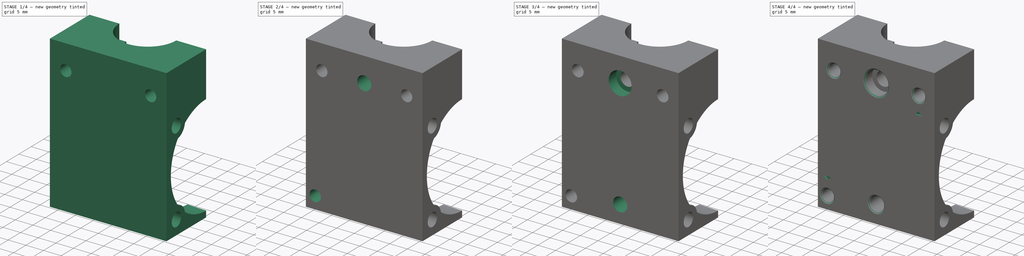
[diagram: build sequence overview — one tinted view per stage of 4, left to right]
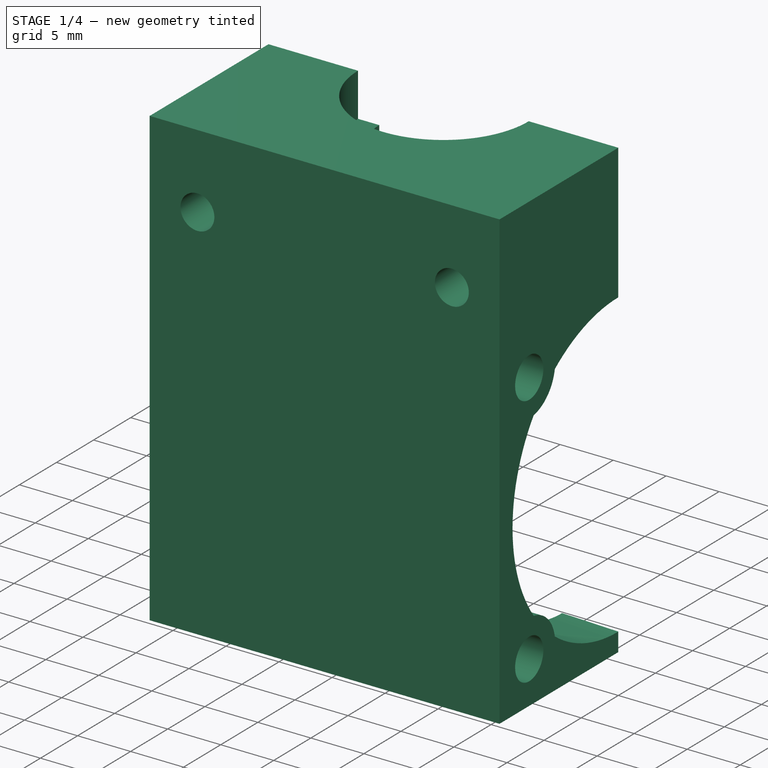
[diagram: stage 1 of 4 — iso view after this stage's code; geometry added in this stage tinted green]
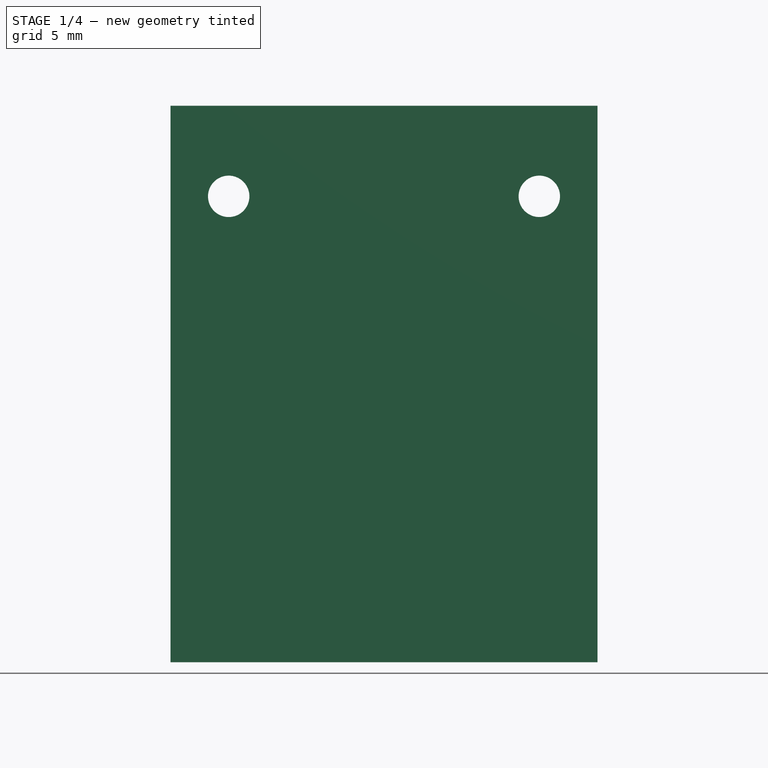
[diagram: stage 1 of 4 — front view after this stage's code; geometry added in this stage tinted green]
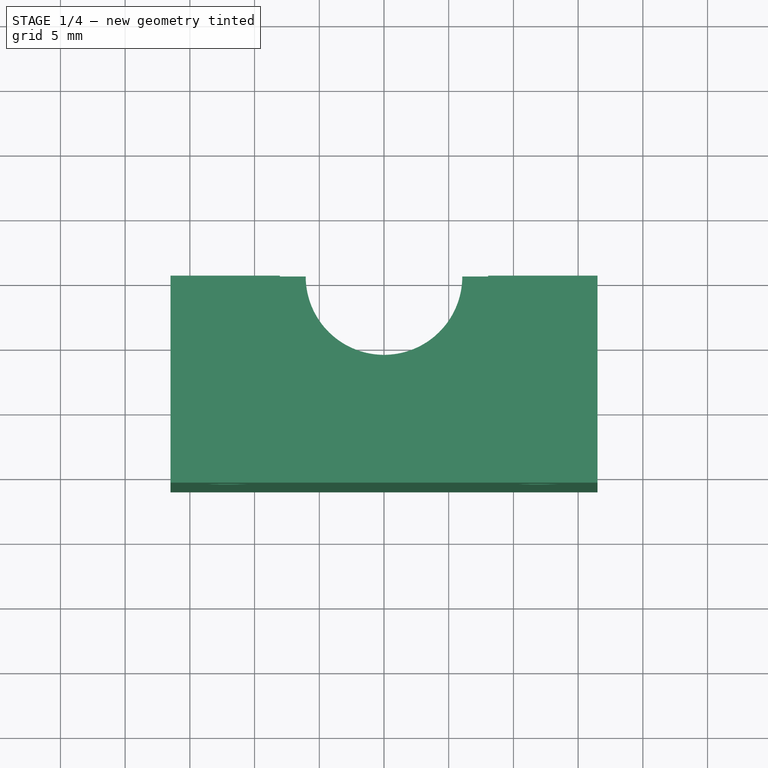
[diagram: stage 1 of 4 — top view after this stage's code; geometry added in this stage tinted green]
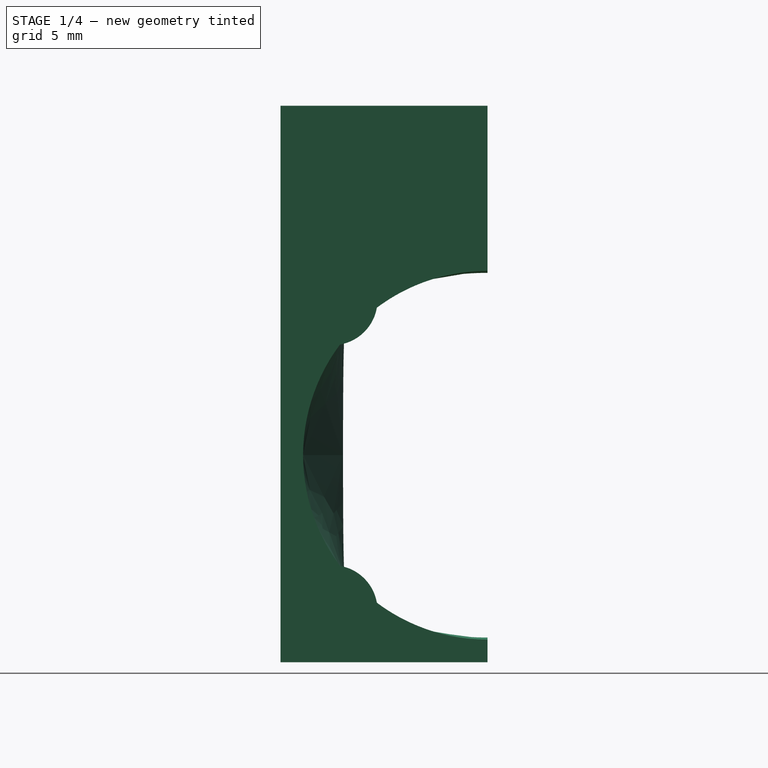
[diagram: stage 1 of 4 — right view after this stage's code; geometry added in this stage tinted green]
FCSTD DOCUMENT  (FreeCAD 0.19R24366 (Git))
Label: front-body-common
License: All rights reserved
LicenseURL: http://en.wikipedia.org/wiki/All_rights_reserved
objects: Sketcher::SketchObject×7, PartDesign::Pocket×6, Part::Feature×1, Part::Mirroring×1, PartDesign::FeatureBase×1, PartDesign::Pad×1, PartDesign::Chamfer×1, PartDesign::Body×1
note: 27 computed .brp shape members not serialized (recipe doc carries the construction recipe); baked Part::Feature solids carry a one-line shape summary decoded from their .brp

FEATURE [Part::Feature] Body002002001  label="body-base-second001"
  shape: bbox 33 x 27 x 43 mm, 35 faces (baked)
FEATURE [Part::Mirroring] Part__Mirroring  label="body-base-second001 (Mirror #1)"
  Base = (0,0,0)
  Normal = (0,1,0)
  Source = -> Body002002001
FEATURE [PartDesign::FeatureBase] BaseFeature004
  BaseFeature = -> Part__Mirroring
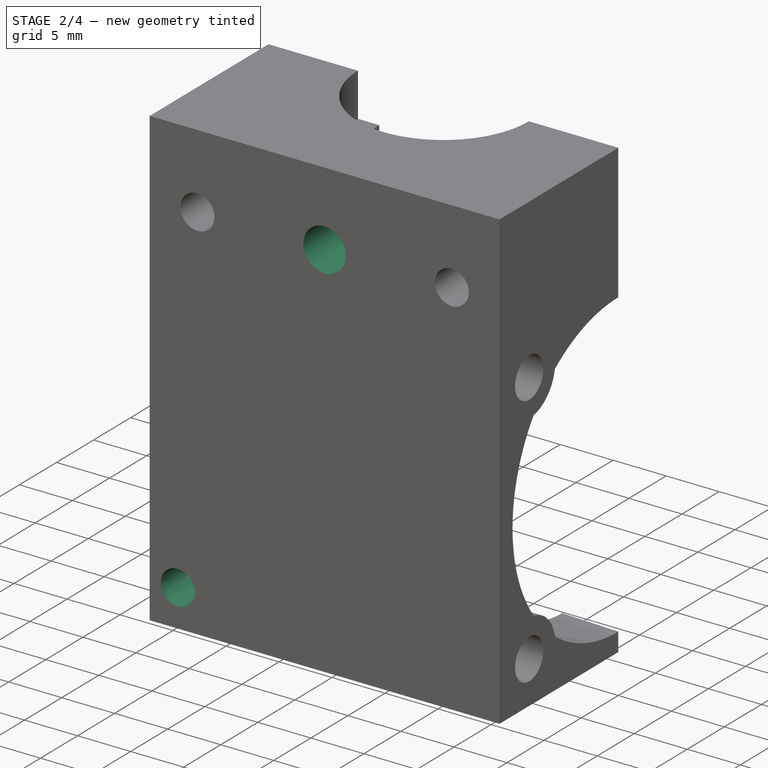
[diagram: stage 2 of 4 — iso view after this stage's code; geometry added in this stage tinted green]
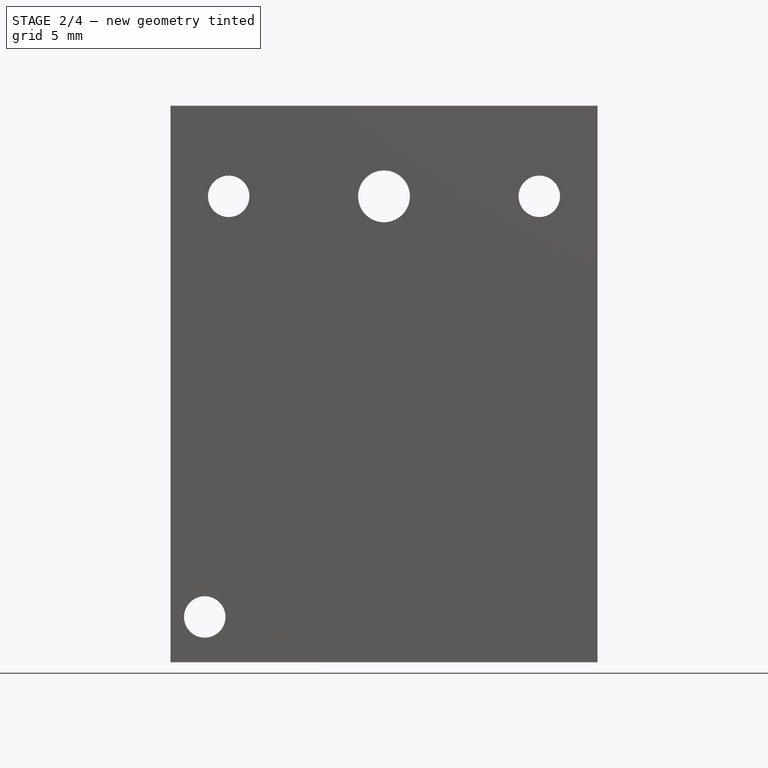
[diagram: stage 2 of 4 — front view after this stage's code; geometry added in this stage tinted green]
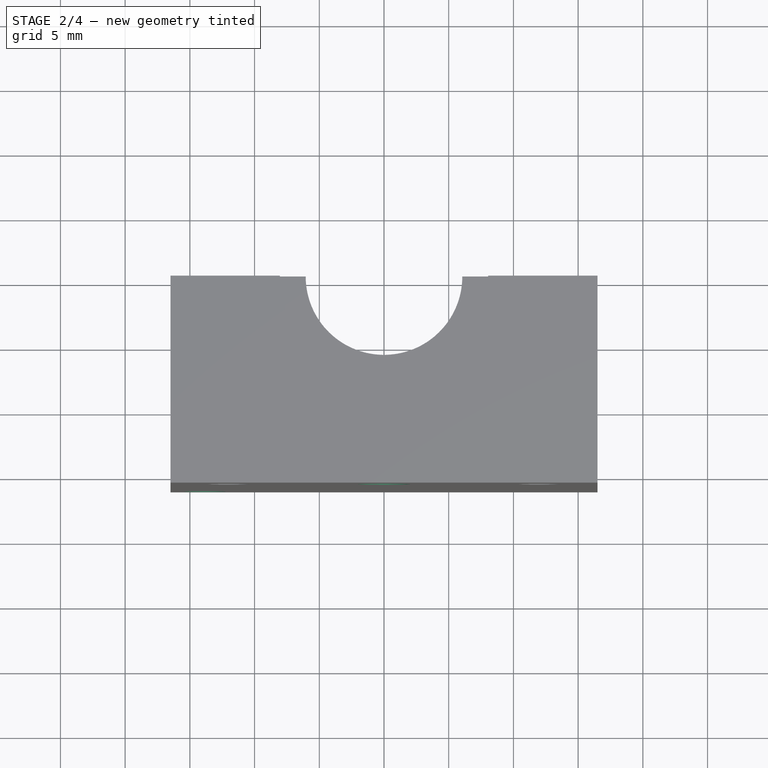
[diagram: stage 2 of 4 — top view after this stage's code; geometry added in this stage tinted green]
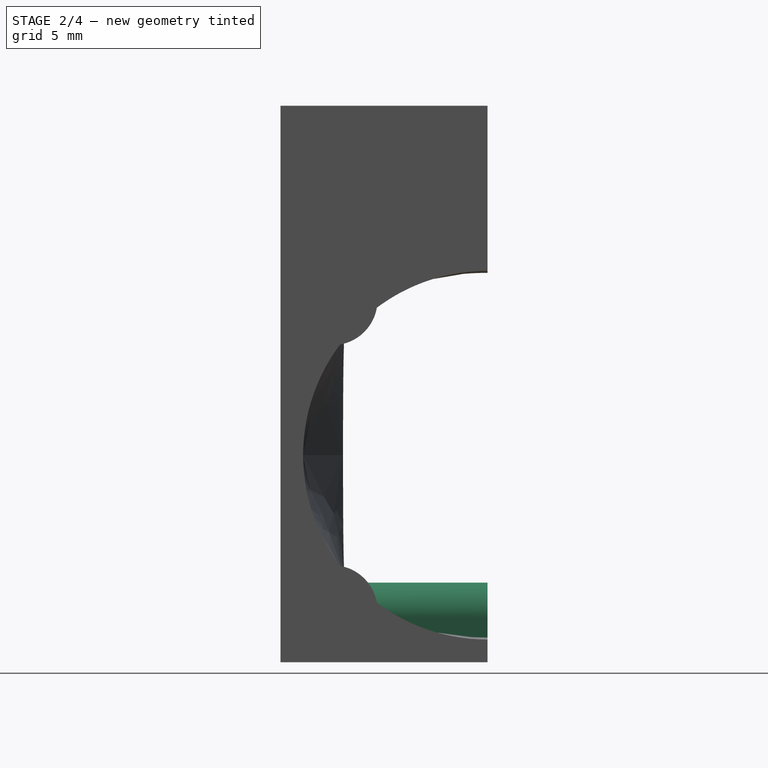
[diagram: stage 2 of 4 — right view after this stage's code; geometry added in this stage tinted green]
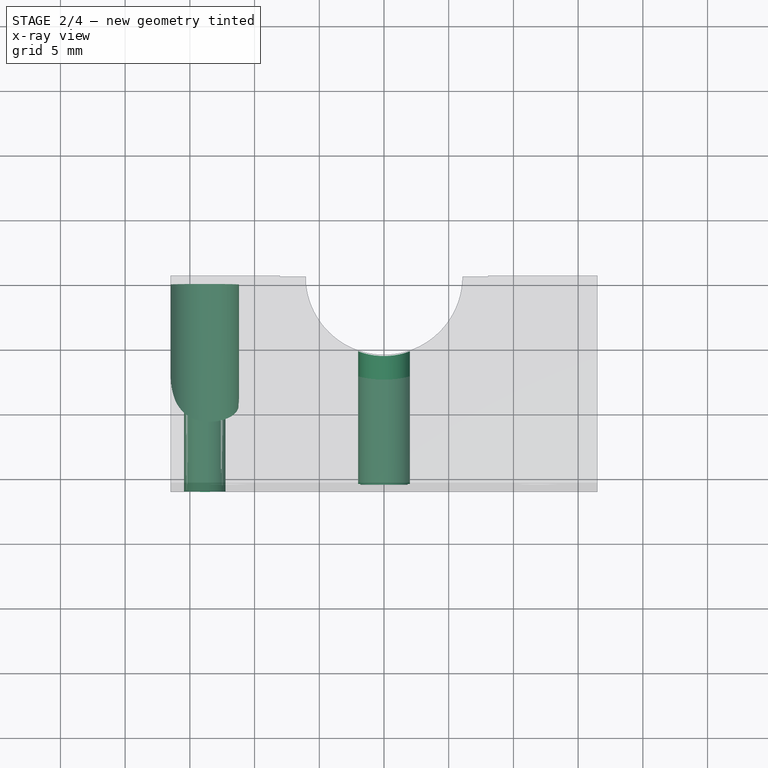
[diagram: stage 2 of 4 — x-ray composite at the top view; earlier geometry ghosted, this stage's added geometry solid]
FEATURE [Sketcher::SketchObject] Sketch026
  FullyConstrained = true
  MapMode = 5
  Placement = pos=(0,0,0) rot=(0,0.707107,0.707107;3.14159rad)
  Support = -> [BaseFeature004]
  sketch-geometry (4):
    g0: ArcOfCircle CenterX=13.85 CenterY=3.5 CenterZ=0 NormalX=0 NormalY=0 NormalZ=1 AngleXU=0 Radius=2.65 StartAngle=0 EndAngle=3.14159
    g1: LineSegment StartX=11.2 StartY=3.5 StartZ=0 EndX=11.2 EndY=0 EndZ=0
    g2: LineSegment StartX=11.2 StartY=0 StartZ=0 EndX=16.5 EndY=0 EndZ=0
    g3: LineSegment StartX=16.5 StartY=0 StartZ=0 EndX=16.5 EndY=3.5 EndZ=0
  constraints (12):
    c: Horizontal(g0,g0)
    c: Horizontal(g0,g0)
    c: Tangent(g0,g1) = -1.5708
    c: Coincident(g1,g2)
    c: PointOnObject(g2,g-1)
    c: Horizontal(g2)
    c: Coincident(g2,g3)
    c: Coincident(g3,g0)
    c: Vertical(g3)
    c: DistanceX(g2,g2) = 5.3
    c: DistanceX(g-1,g2) = 16.5
    c: DistanceY(g-1,g0) = 3.5
FEATURE [PartDesign::Pad] Pad005
  BaseFeature = -> BaseFeature004
  Direction = (1,1,1)
  Length = 10
  Length2 = 100
  Profile = -> Sketch026
  Reversed = true
  Type = 3
  UpToFace = -> BaseFeature004 [Face12]
FEATURE [Sketcher::SketchObject] Sketch027
  ExternalGeometry = -> [Pad005]
  FullyConstrained = true
  MapMode = 5
  Placement = pos=(0,0,0) rot=(0,0.707107,0.707107;3.14159rad)
  Support = -> [Pad005]
  sketch-geometry (1):
    g0: Circle CenterX=13.85 CenterY=3.5 CenterZ=0 NormalX=0 NormalY=0 NormalZ=1 AngleXU=0 Radius=1.6
  constraints (2):
    c: Coincident(g0,g-3)
    c: Radius(g0) = 1.6
FEATURE [PartDesign::Pocket] Pocket014
  BaseFeature = -> Pad005
  Length = 5
  Length2 = 100
  Profile = -> Sketch027
  Type = 1
FEATURE [Sketcher::SketchObject] Sketch028
  FullyConstrained = true
  MapMode = 5
  Placement = pos=(0,-16,-3.5e-15) rot=(1,0,0;1.5708rad)
  Support = -> [Pocket014]
  sketch-geometry (1):
    g0: Circle CenterX=0 CenterY=36 CenterZ=0 NormalX=0 NormalY=0 NormalZ=1 AngleXU=0 Radius=2
  constraints (3):
    c: PointOnObject(g0,g-2)
    c: Radius(g0) = 2
    c: DistanceY(g-1,g0) = 36
FEATURE [PartDesign::Pocket] Pocket015
  BaseFeature = -> Pocket014
  Length = 6
  Length2 = 100
  Profile = -> Sketch028
  Type = 1
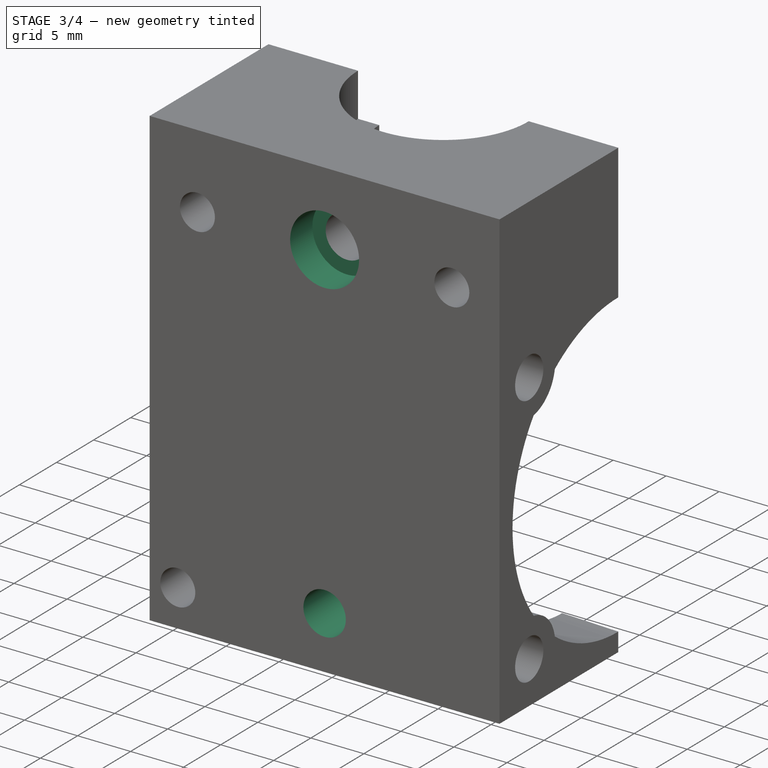
[diagram: stage 3 of 4 — iso view after this stage's code; geometry added in this stage tinted green]
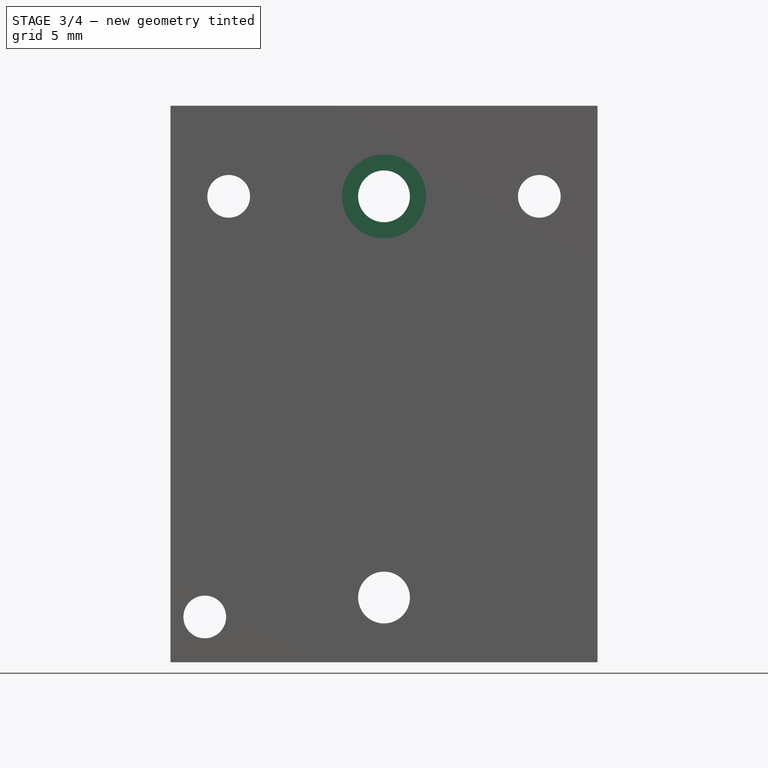
[diagram: stage 3 of 4 — front view after this stage's code; geometry added in this stage tinted green]
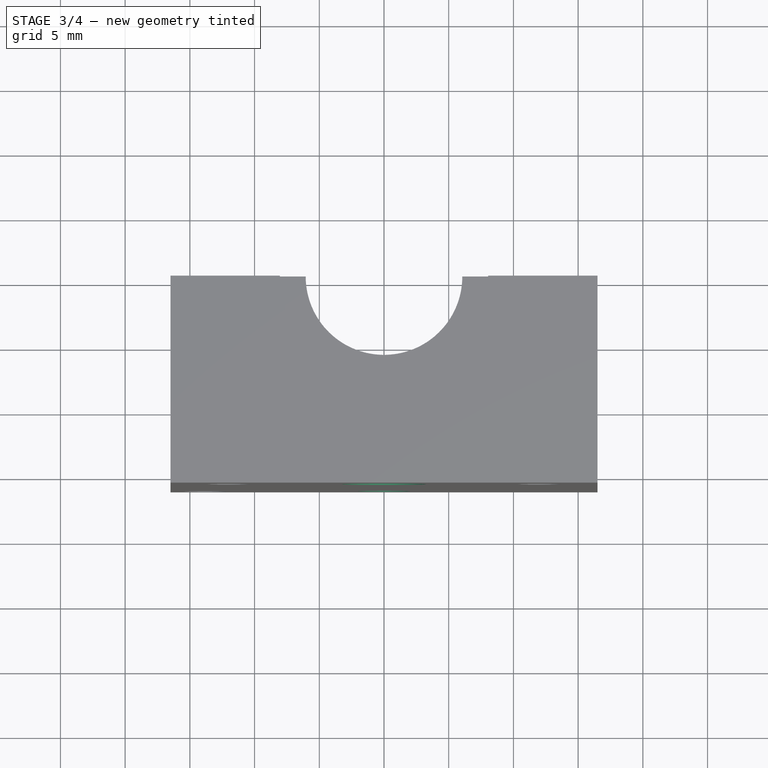
[diagram: stage 3 of 4 — top view after this stage's code; geometry added in this stage tinted green]
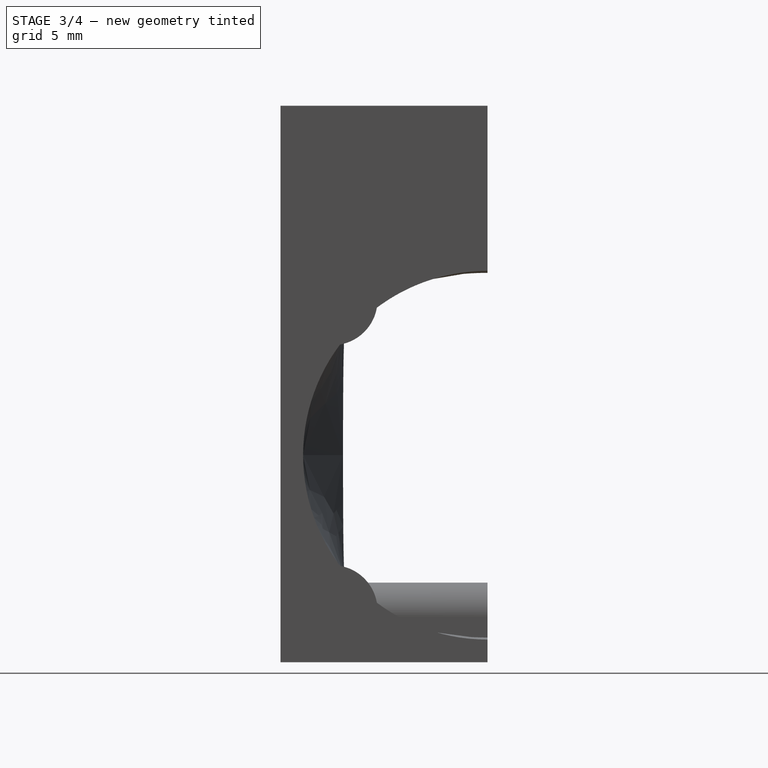
[diagram: stage 3 of 4 — right view after this stage's code; geometry added in this stage tinted green]
FEATURE [Sketcher::SketchObject] Sketch029
  ExternalGeometry = -> [Pocket015]
  FullyConstrained = true
  MapMode = 5
  Placement = pos=(0,-16,-3.5e-15) rot=(1,0,0;1.5708rad)
  Support = -> [Pocket015]
  sketch-geometry (1):
    g0: Circle CenterX=0 CenterY=36 CenterZ=0 NormalX=0 NormalY=0 NormalZ=1 AngleXU=0 Radius=3.25
  constraints (2):
    c: Coincident(g0,g-3)
    c: Radius(g0) = 3.25
FEATURE [PartDesign::Pocket] Pocket016
  BaseFeature = -> Pocket015
  Length = 3
  Length2 = 100
  Profile = -> Sketch029
  Type = 0
FEATURE [Sketcher::SketchObject] Sketch030
  FullyConstrained = true
  MapMode = 5
  Placement = pos=(0,-16,-3.5e-15) rot=(1,0,0;1.5708rad)
  Support = -> [Pocket016]
  sketch-geometry (1):
    g0: Circle CenterX=0 CenterY=5 CenterZ=0 NormalX=0 NormalY=0 NormalZ=1 AngleXU=0 Radius=2
  constraints (3):
    c: PointOnObject(g0,g-2)
    c: Radius(g0) = 2
    c: DistanceY(g-1,g0) = 5
FEATURE [PartDesign::Pocket] Pocket017
  BaseFeature = -> Pocket016
  Length = 5
  Length2 = 100
  Profile = -> Sketch030
  Type = 0
FEATURE [Sketcher::SketchObject] Sketch034
  ExternalGeometry = -> [Pocket017]
  FullyConstrained = true
  MapMode = 5
  Placement = pos=(0,-16,-3.5e-15) rot=(1,0,0;1.5708rad)
  Support = -> [Pocket017]
  sketch-geometry (3):
    g0: Circle CenterX=-12 CenterY=36 CenterZ=0 NormalX=0 NormalY=0 NormalZ=1 AngleXU=0 Radius=1.65
    g1: Circle CenterX=12 CenterY=36 CenterZ=0 NormalX=0 NormalY=0 NormalZ=1 AngleXU=0 Radius=1.65
    g2: Circle CenterX=-13.85 CenterY=3.5 CenterZ=0 NormalX=0 NormalY=0 NormalZ=1 AngleXU=0 Radius=1.65
  constraints (6):
    c: Coincident(g0,g-3)
    c: Coincident(g1,g-4)
    c: Equal(g1,g0)
    c: Radius(g0) = 1.65
    c: Coincident(g2,g-5)
    c: Radius(g2) = 1.65
FEATURE [PartDesign::Pocket] Pocket020
  BaseFeature = -> Pocket017
  Length = 5
  Length2 = 100
  Profile = -> Sketch034
  Type = 1
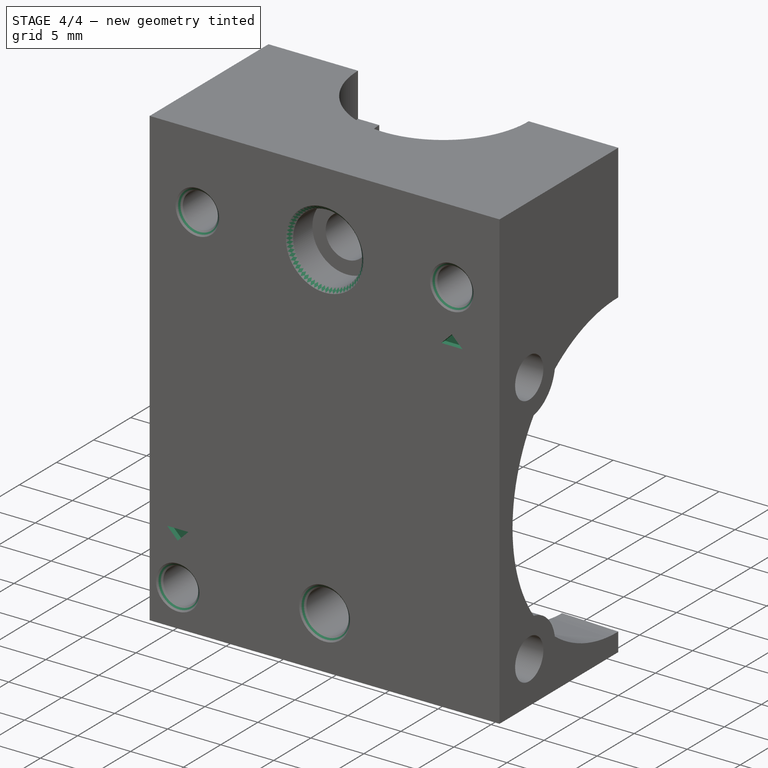
[diagram: stage 4 of 4 — iso view after this stage's code; geometry added in this stage tinted green]
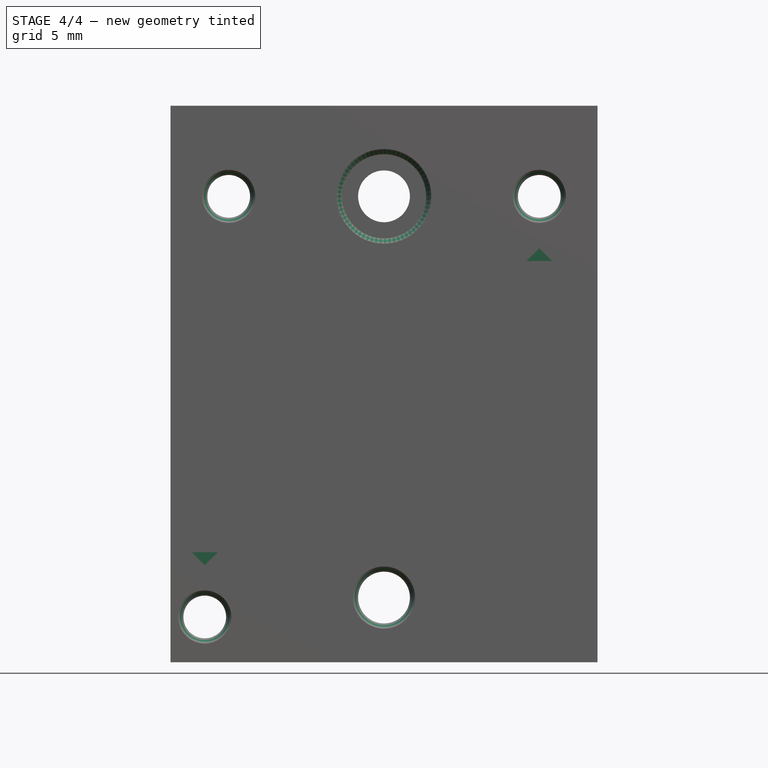
[diagram: stage 4 of 4 — front view after this stage's code; geometry added in this stage tinted green]
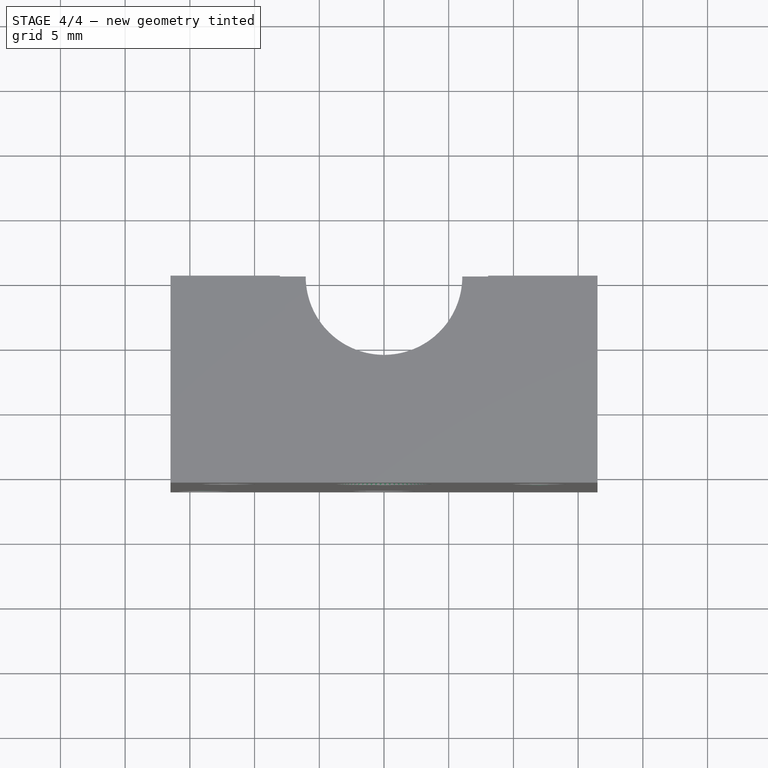
[diagram: stage 4 of 4 — top view after this stage's code; geometry added in this stage tinted green]
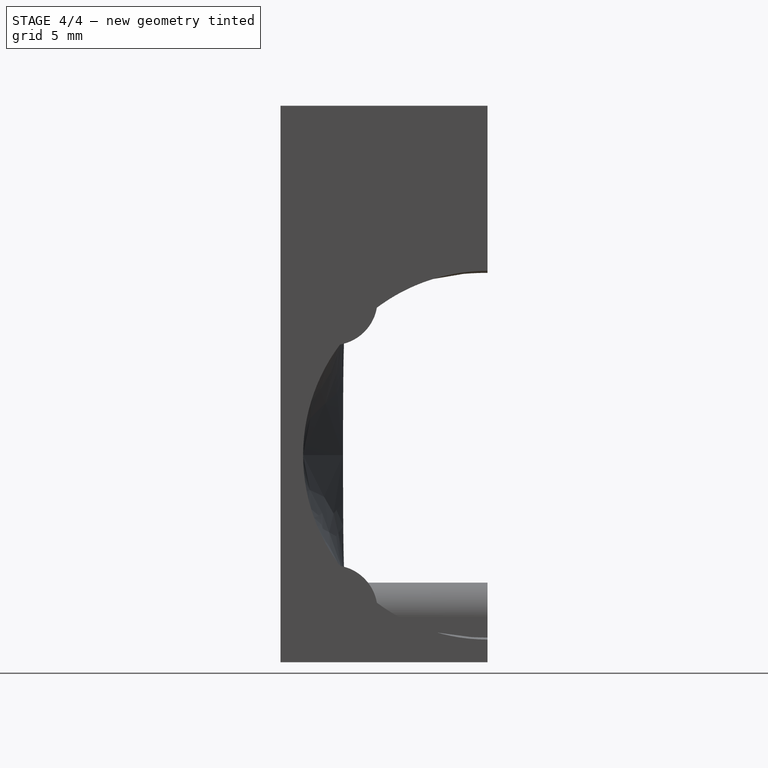
[diagram: stage 4 of 4 — right view after this stage's code; geometry added in this stage tinted green]
FEATURE [Sketcher::SketchObject] Sketch
  ExternalGeometry = -> [Pocket020]
  FullyConstrained = true
  MapMode = 5
  Placement = pos=(0,-16,-3.5e-15) rot=(1,0,0;1.5708rad)
  Support = -> [Pocket020]
  sketch-geometry (6):
    g0: LineSegment StartX=12 StartY=32 StartZ=0 EndX=11 EndY=31 EndZ=0
    g1: LineSegment StartX=11 StartY=31 StartZ=0 EndX=13 EndY=31 EndZ=0
    g2: LineSegment StartX=13 StartY=31 StartZ=0 EndX=12 EndY=32 EndZ=0
    g3: LineSegment StartX=-13.85 StartY=7.5 StartZ=0 EndX=-14.85 EndY=8.5 EndZ=0
    g4: LineSegment StartX=-14.85 StartY=8.5 StartZ=0 EndX=-12.85 EndY=8.5 EndZ=0
    g5: LineSegment StartX=-12.85 StartY=8.5 StartZ=0 EndX=-13.85 EndY=7.5 EndZ=0
  constraints (18):
    c: Coincident(g0,g1)
    c: Horizontal(g1)
    c: Coincident(g1,g2)
    c: Coincident(g2,g0)
    c: Coincident(g3,g4)
    c: Horizontal(g4)
    c: Coincident(g4,g5)
    c: Coincident(g5,g3)
    c: DistanceX(g4,g4) = 2
    c: DistanceX(g1,g1) = 2
    c: DistanceY(g1,g0) = 1
    c: DistanceY(g3,g4) = 1
    c: Equal(g3,g5)
    c: Equal(g0,g2)
    c: Vertical(g0,g-3)
    c: DistanceY(g0,g-3) = 4
    c: Vertical(g3,g-4)
    c: DistanceY(g-4,g3) = 4
FEATURE [PartDesign::Pocket] Pocket
  BaseFeature = -> Pocket020
  Length = 0.5
  Length2 = 100
  Profile = -> Sketch
  Type = 0
FEATURE [PartDesign::Chamfer] Chamfer
  Angle = 45
  Base = -> Pocket [Edge50,Edge45,Edge49,Edge55,Edge51]
  BaseFeature = -> Pocket
  ChamferType = 0
  FlipDirection = false
  Size = 0.4
  Size2 = 1
  SupportTransform = false
FEATURE [PartDesign::Body] Body002002002002004  label="front-r1"
  BaseFeature = -> Part__Mirroring
  Group = -> [BaseFeature004,Sketch026,Pad005,Sketch027,Pocket014,Sketch028,Pocket015,Sketch029,Pocket016,Sketch030,Pocket017,Sketch034,Pocket020,Sketch,Pocket,Chamfer]
  Origin = -> Origin017
  Placement = pos=(16.5,-16,0) rot=(0,0,1;0rad)
  Tip = -> Chamfer
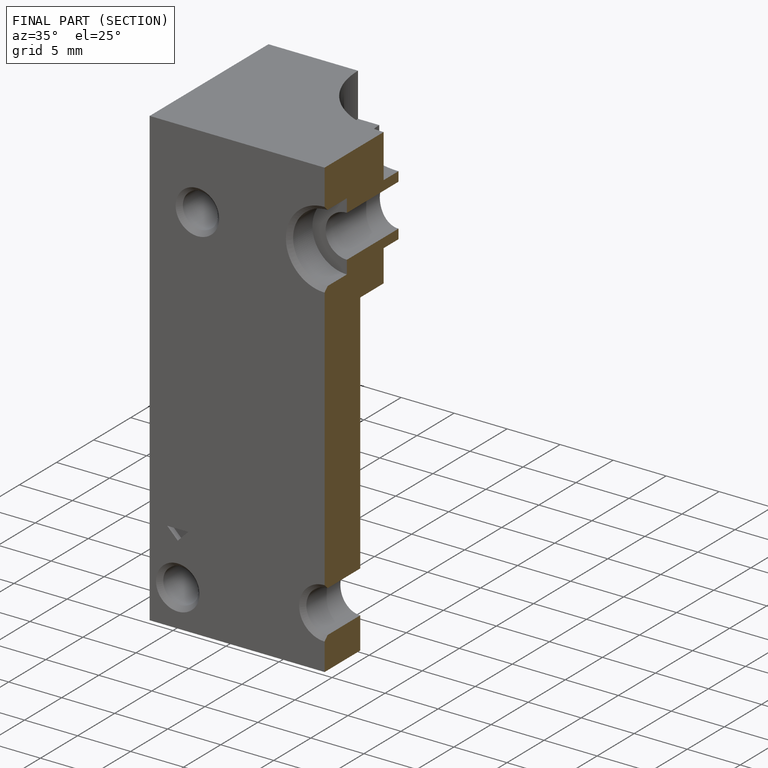
[diagram: finished part — half-section view (interior)]
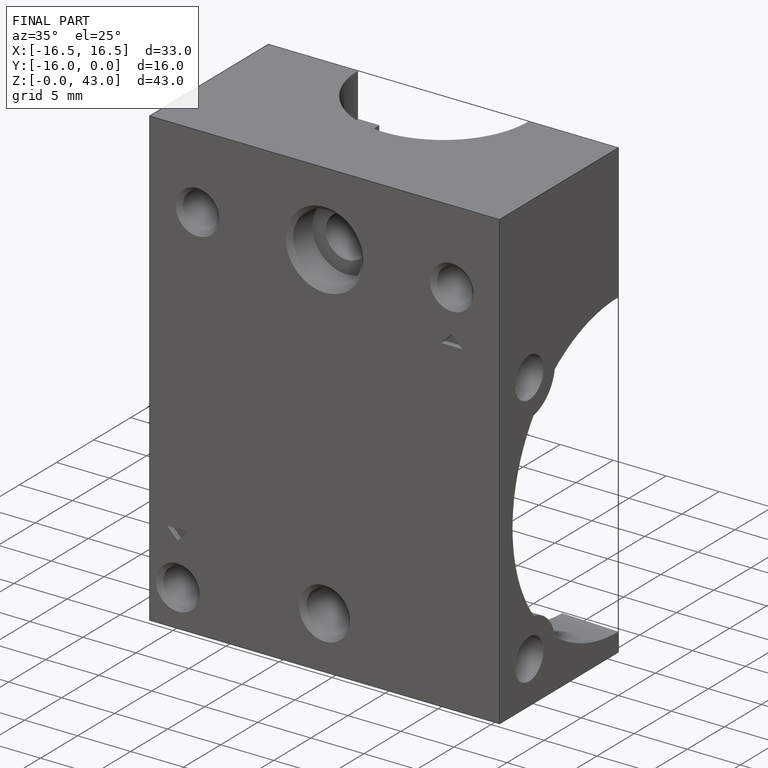
[diagram: finished part — iso view with bounding-box wireframe]
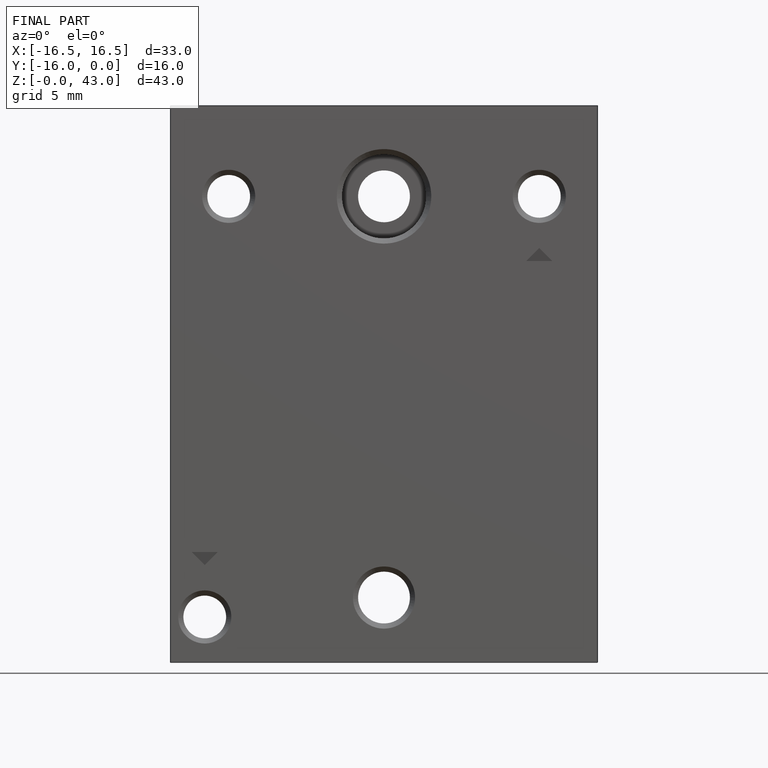
[diagram: finished part — front view with bounding-box wireframe]
